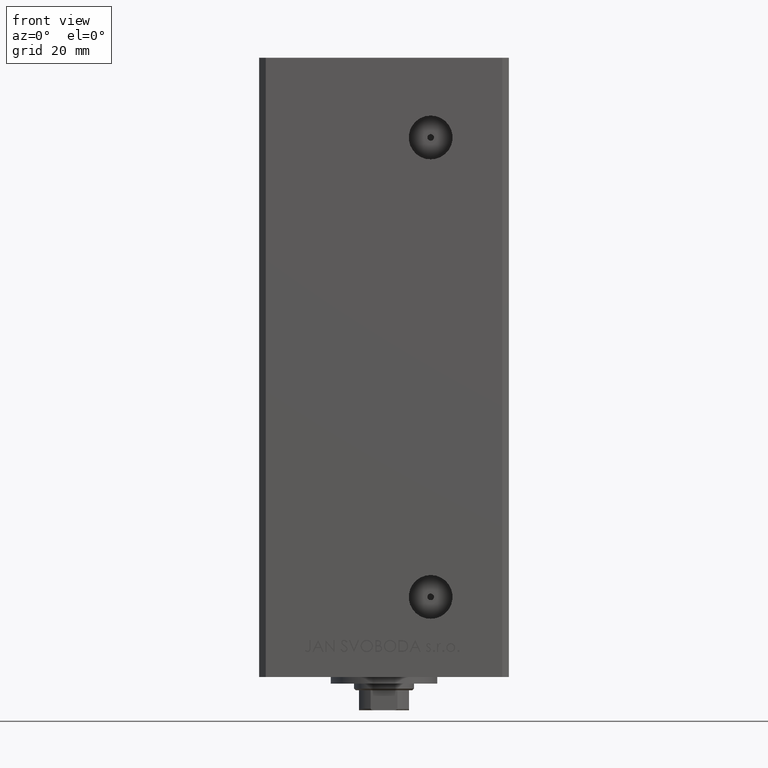
[diagram: clean part render]
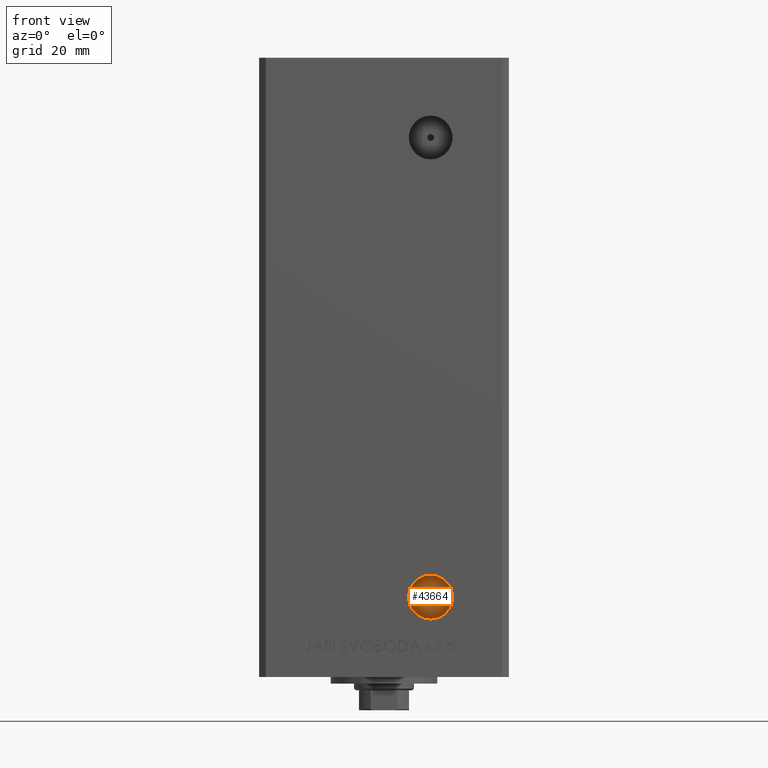
[diagram: same view with one face highlighted and labeled with its STEP entity id]
A machine part, front view. The second image highlights one B-rep face of the part: STEP entity #43664.
In plain terms, the highlighted planar face has unit normal (0, -1, 0).
Its self-contained STEP definition (entity closure, byte-faithful):
#223 = DIRECTION ( 'NONE',  ( 0.000000000000000000, 0.000000000000000000, -1.000000000000000000 ) ) ;
#2797 = CARTESIAN_POINT ( 'NONE',  ( 13.99999999999999112, -19.50000000000000355, 15.58000000000000718 ) ) ;
#3215 = EDGE_LOOP ( 'NONE', ( #27250, #43353 ) ) ;
#4440 = AXIS2_PLACEMENT_3D ( 'NONE', #16266, #43386, #39609 ) ;
#4809 = EDGE_LOOP ( 'NONE', ( #32030, #16974 ) ) ;
#6211 = CARTESIAN_POINT ( 'NONE',  ( 13.99999999999999112, -19.50000000000000355, 2.420000000000009699 ) ) ;
#8717 = DIRECTION ( 'NONE',  ( 0.000000000000000000, -1.000000000000000000, 0.000000000000000000 ) ) ;
#9025 = EDGE_CURVE ( 'NONE', #14724, #16239, #18909, .T. ) ;
#9393 = DIRECTION ( 'NONE',  ( 0.000000000000000000, 0.000000000000000000, -1.000000000000000000 ) ) ;
#9914 = EDGE_CURVE ( 'NONE', #16239, #14724, #26110, .T. ) ;
#12488 = PLANE ( 'NONE',  #12825 ) ;
#12825 = AXIS2_PLACEMENT_3D ( 'NONE', #15770, #8717, #42400 ) ;
#13643 = AXIS2_PLACEMENT_3D ( 'NONE', #36003, #32481, #9393 ) ;
#14724 = VERTEX_POINT ( 'NONE', #2797 ) ;
#15770 = CARTESIAN_POINT ( 'NONE',  ( 13.99999999999999112, -19.50000000000000355, 9.000000000000007105 ) ) ;
#16107 = EDGE_CURVE ( 'NONE', #18537, #45578, #23796, .T. ) ;
#16239 = VERTEX_POINT ( 'NONE', #6211 ) ;
#16266 = CARTESIAN_POINT ( 'NONE',  ( 13.99999999999999112, -19.50000000000000355, 9.000000000000007105 ) ) ;
#16974 = ORIENTED_EDGE ( 'NONE', *, *, #9025, .T. ) ;
#18537 = VERTEX_POINT ( 'NONE', #37338 ) ;
#18909 = CIRCLE ( 'NONE', #45369, 6.579999999999998295 ) ;
#23529 = FACE_BOUND ( 'NONE', #3215, .T. ) ;
#23796 = CIRCLE ( 'NONE', #25366, 1.000000000000000888 ) ;
#25366 = AXIS2_PLACEMENT_3D ( 'NONE', #41438, #33886, #49226 ) ;
#25433 = CARTESIAN_POINT ( 'NONE',  ( 13.99999999999999112, -19.50000000000000355, 8.000000000000007105 ) ) ;
#26110 = CIRCLE ( 'NONE', #4440, 6.579999999999998295 ) ;
#27250 = ORIENTED_EDGE ( 'NONE', *, *, #43948, .F. ) ;
#32030 = ORIENTED_EDGE ( 'NONE', *, *, #9914, .T. ) ;
#32481 = DIRECTION ( 'NONE',  ( 0.000000000000000000, -1.000000000000000000, 0.000000000000000000 ) ) ;
#33886 = DIRECTION ( 'NONE',  ( 0.000000000000000000, -1.000000000000000000, 0.000000000000000000 ) ) ;
#34616 = DIRECTION ( 'NONE',  ( 0.000000000000000000, -1.000000000000000000, 0.000000000000000000 ) ) ;
#34850 = CARTESIAN_POINT ( 'NONE',  ( 13.99999999999999112, -19.50000000000000355, 9.000000000000007105 ) ) ;
#36003 = CARTESIAN_POINT ( 'NONE',  ( 13.99999999999999112, -19.50000000000000355, 9.000000000000007105 ) ) ;
#37338 = CARTESIAN_POINT ( 'NONE',  ( 13.99999999999999112, -19.50000000000000355, 10.00000000000000888 ) ) ;
#39609 = DIRECTION ( 'NONE',  ( 0.000000000000000000, 0.000000000000000000, -1.000000000000000000 ) ) ;
#40937 = CIRCLE ( 'NONE', #13643, 1.000000000000000888 ) ;
#41438 = CARTESIAN_POINT ( 'NONE',  ( 13.99999999999999112, -19.50000000000000355, 9.000000000000007105 ) ) ;
#42400 = DIRECTION ( 'NONE',  ( 0.000000000000000000, -0.000000000000000000, -1.000000000000000000 ) ) ;
#42881 = FACE_OUTER_BOUND ( 'NONE', #4809, .T. ) ;
#43353 = ORIENTED_EDGE ( 'NONE', *, *, #16107, .F. ) ;
#43386 = DIRECTION ( 'NONE',  ( 0.000000000000000000, -1.000000000000000000, 0.000000000000000000 ) ) ;
#43664 = ADVANCED_FACE ( 'NONE', ( #23529, #42881 ), #12488, .T. ) ;
#43948 = EDGE_CURVE ( 'NONE', #45578, #18537, #40937, .T. ) ;
#45369 = AXIS2_PLACEMENT_3D ( 'NONE', #34850, #34616, #223 ) ;
#45578 = VERTEX_POINT ( 'NONE', #25433 ) ;
#49226 = DIRECTION ( 'NONE',  ( 0.000000000000000000, 0.000000000000000000, -1.000000000000000000 ) ) ;